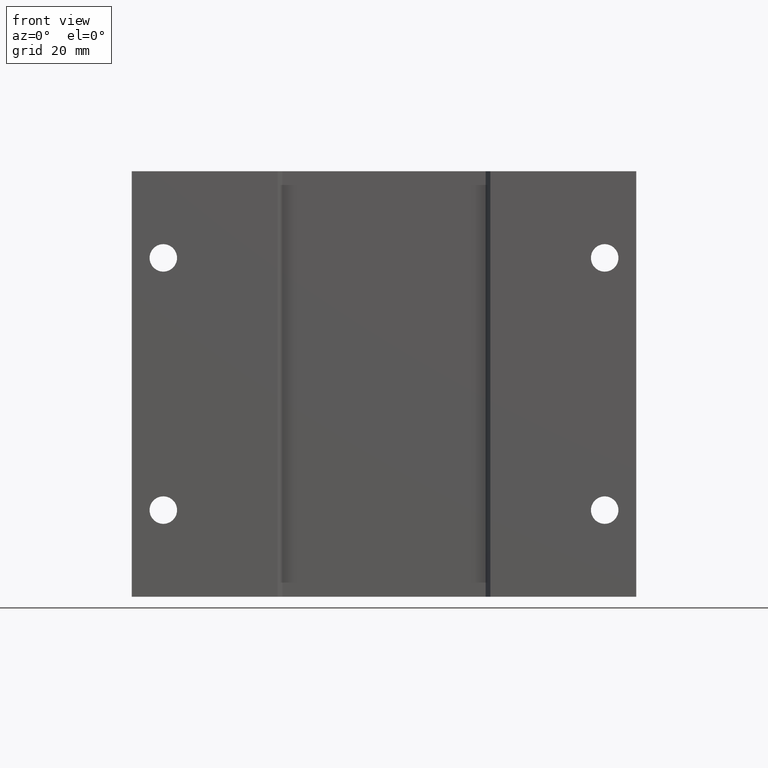
[diagram: clean part render]
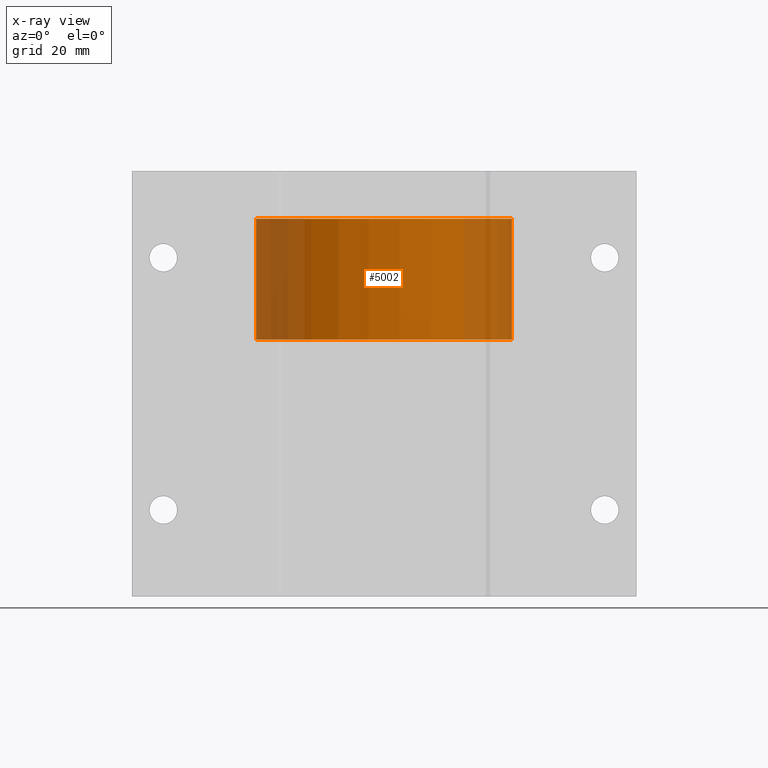
[diagram: x-ray — body ghosted, one internal face saturated and labeled with its STEP entity id]
A machine part, front view, then the same camera in x-ray: the body is ghosted and one INTERNAL B-rep face — a face not visible from any outside direction — is saturated and labeled: STEP entity #5002.
In plain terms, the highlighted cylindrical surface (partial cylindrical patch) has radius 25.7556 mm, axis along (0, 0, 1).
Its self-contained STEP definition (entity closure, byte-faithful):
#326 = EDGE_LOOP ( 'NONE', ( #3374, #7917, #2538, #1279 ) ) ;
#834 = DIRECTION ( 'NONE',  ( -0.000000000000000000, -0.000000000000000000, 1.000000000000000000 ) ) ;
#1177 = EDGE_CURVE ( 'NONE', #2468, #10973, #1775, .T. ) ;
#1279 = ORIENTED_EDGE ( 'NONE', *, *, #10771, .F. ) ;
#1439 = CIRCLE ( 'NONE', #7802, 1.013999999999999568 ) ;
#1484 = CARTESIAN_POINT ( 'NONE',  ( 1.014000000000000012, 0.000000000000000000, -1.687501968503936967 ) ) ;
#1775 = LINE ( 'NONE', #8097, #2110 ) ;
#2110 = VECTOR ( 'NONE', #834, 39.37007874015748143 ) ;
#2114 = CARTESIAN_POINT ( 'NONE',  ( 1.014000000000000012, 0.000000000000000000, 1.309247924617903180 ) ) ;
#2364 = DIRECTION ( 'NONE',  ( -0.000000000000000000, -0.000000000000000000, 1.000000000000000000 ) ) ;
#2468 = VERTEX_POINT ( 'NONE', #8626 ) ;
#2472 = DIRECTION ( 'NONE',  ( -0.000000000000000000, -0.000000000000000000, 1.000000000000000000 ) ) ;
#2538 = ORIENTED_EDGE ( 'NONE', *, *, #8384, .T. ) ;
#2739 = VERTEX_POINT ( 'NONE', #2114 ) ;
#2893 = CARTESIAN_POINT ( 'NONE',  ( 1.013999999999999568, 0.000000000000000000, 0.3498924834860024924 ) ) ;
#3072 = CARTESIAN_POINT ( 'NONE',  ( 0.000000000000000000, 0.000000000000000000, -1.687501968503936967 ) ) ;
#3374 = ORIENTED_EDGE ( 'NONE', *, *, #3980, .F. ) ;
#3697 = AXIS2_PLACEMENT_3D ( 'NONE', #5102, #2472, #4162 ) ;
#3980 = EDGE_CURVE ( 'NONE', #2468, #5132, #1439, .T. ) ;
#4006 = DIRECTION ( 'NONE',  ( -0.000000000000000000, -0.000000000000000000, 1.000000000000000000 ) ) ;
#4050 = FACE_OUTER_BOUND ( 'NONE', #326, .T. ) ;
#4162 = DIRECTION ( 'NONE',  ( 1.000000000000000000, 0.000000000000000000, 0.000000000000000000 ) ) ;
#4779 = DIRECTION ( 'NONE',  ( 1.000000000000000000, 0.000000000000000000, 0.000000000000000000 ) ) ;
#5002 = ADVANCED_FACE ( 'NONE', ( #4050 ), #10048, .F. ) ;
#5102 = CARTESIAN_POINT ( 'NONE',  ( 0.000000000000000000, 0.000000000000000000, 1.309247924617903180 ) ) ;
#5112 = CARTESIAN_POINT ( 'NONE',  ( 0.000000000000000000, 0.000000000000000000, 0.3498924834860024924 ) ) ;
#5132 = VERTEX_POINT ( 'NONE', #2893 ) ;
#5683 = LINE ( 'NONE', #1484, #6716 ) ;
#5752 = DIRECTION ( 'NONE',  ( 1.000000000000000000, 0.000000000000000000, 0.000000000000000000 ) ) ;
#5910 = CARTESIAN_POINT ( 'NONE',  ( -1.014000000000000012, 1.241791854335416114E-16, 1.309247924617903180 ) ) ;
#6575 = CIRCLE ( 'NONE', #3697, 1.014000000000000012 ) ;
#6716 = VECTOR ( 'NONE', #2364, 39.37007874015748143 ) ;
#7802 = AXIS2_PLACEMENT_3D ( 'NONE', #5112, #4006, #5752 ) ;
#7917 = ORIENTED_EDGE ( 'NONE', *, *, #1177, .T. ) ;
#8097 = CARTESIAN_POINT ( 'NONE',  ( -1.014000000000000012, 1.241791854335416114E-16, -1.687501968503936967 ) ) ;
#8384 = EDGE_CURVE ( 'NONE', #10973, #2739, #6575, .T. ) ;
#8626 = CARTESIAN_POINT ( 'NONE',  ( -1.013999999999999568, 1.241791854335415868E-16, 0.3498924834860024924 ) ) ;
#9937 = DIRECTION ( 'NONE',  ( -0.000000000000000000, -0.000000000000000000, 1.000000000000000000 ) ) ;
#10048 = CYLINDRICAL_SURFACE ( 'NONE', #10877, 1.014000000000000012 ) ;
#10771 = EDGE_CURVE ( 'NONE', #5132, #2739, #5683, .T. ) ;
#10877 = AXIS2_PLACEMENT_3D ( 'NONE', #3072, #9937, #4779 ) ;
#10973 = VERTEX_POINT ( 'NONE', #5910 ) ;